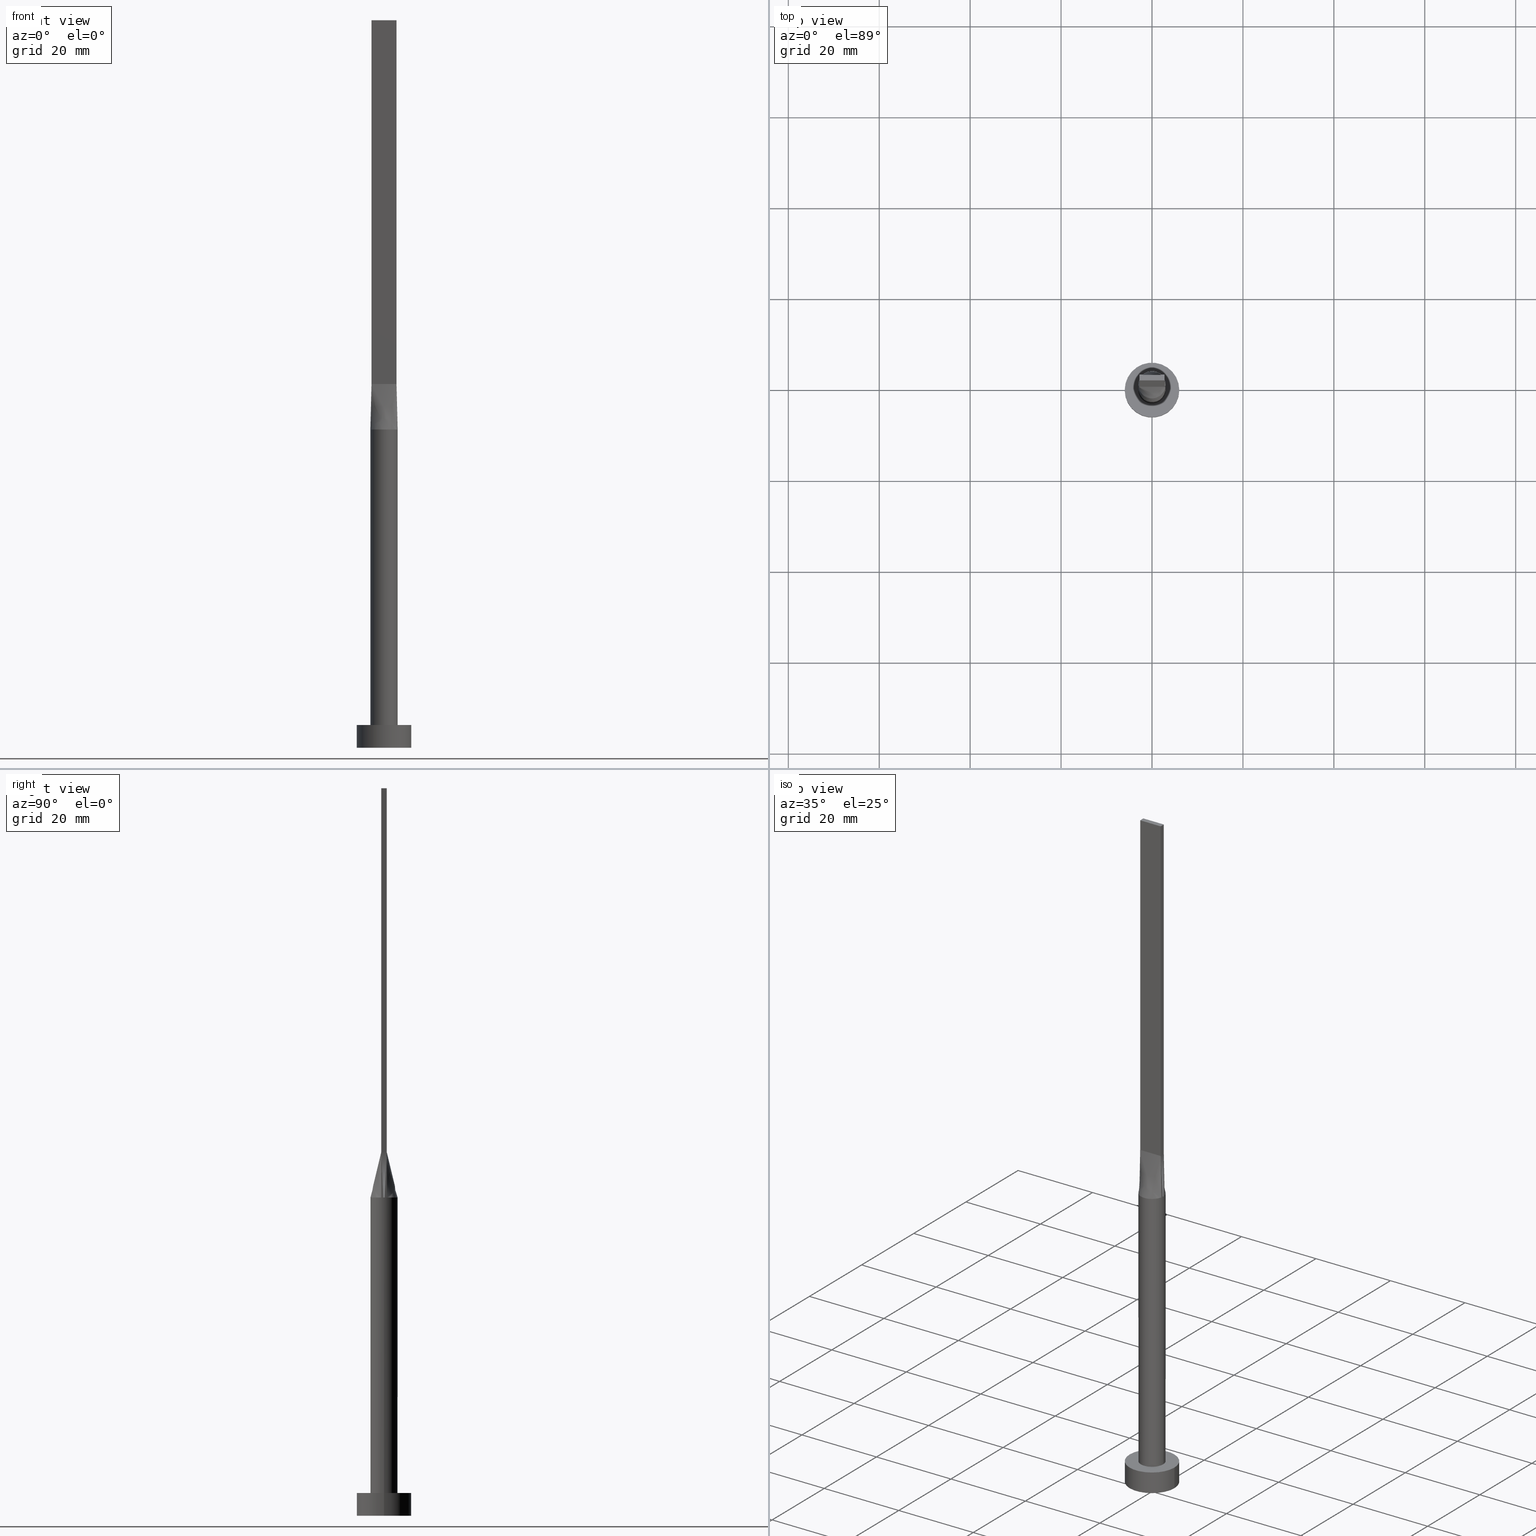
[diagram: canonical four-view strip — front | top / right | iso, engineering-drawing reading convention]
A machine part, canonical four-view strip (front | top / right | iso — engineering-drawing reading convention). The complete STEP part file that produces these views, byte-faithful:
ISO-10303-21;
HEADER;
FILE_DESCRIPTION (( 'STEP AP203' ),
    '1' );
FILE_NAME ('0a02.STEP',
    '2023-02-13T11:41:25',
    ( '' ),
    ( '' ),
    'SwSTEP 2.0',
    'SolidWorks 2019',
    '' );
FILE_SCHEMA (( 'CONFIG_CONTROL_DESIGN' ));
ENDSEC;

DATA;
#1 = CARTESIAN_POINT ( 'NONE',  ( 0.2291666666666700158, 0.6000000000000001998, 80.00000000000000000 ) ) ;
#2 = CARTESIAN_POINT ( 'NONE',  ( 2.931303352270923757, 0.6395574164693091923, 70.00000000000000000 ) ) ;
#3 = EDGE_CURVE ( 'NONE', #162, #382, #234, .T. ) ;
#4 = CARTESIAN_POINT ( 'NONE',  ( -2.976487486186430331, -0.4312336333497656105, 70.00000000000000000 ) ) ;
#5 = CARTESIAN_POINT ( 'NONE',  ( 6.000000000000000888, 7.347880794884120722E-16, 0.000000000000000000 ) ) ;
#6 = DIRECTION ( 'NONE',  ( -0.000000000000000000, -0.000000000000000000, -1.000000000000000000 ) ) ;
#7 = FACE_BOUND ( 'NONE', #147, .T. ) ;
#8 = AXIS2_PLACEMENT_3D ( 'NONE', #70, #380, #115 ) ;
#9 = CARTESIAN_POINT ( 'NONE',  ( 6.000000000000000888, 7.347880794884120722E-16, 5.000000000000000000 ) ) ;
#10 = CIRCLE ( 'NONE', #400, 6.000000000000000888 ) ;
#11 = DIRECTION ( 'NONE',  ( 1.000000000000000000, 0.000000000000000000, -0.000000000000000000 ) ) ;
#12 = CARTESIAN_POINT ( 'NONE',  ( -2.518011668798964653, 1.657305971825549840, 70.00000000000002842 ) ) ;
#13 = VERTEX_POINT ( 'NONE', #342 ) ;
#14 = CARTESIAN_POINT ( 'NONE',  ( -2.750000000000000000, -0.5999999999999994227, 80.00000000000000000 ) ) ;
#15 = EDGE_CURVE ( 'NONE', #458, #508, #505, .T. ) ;
#16 = DIRECTION ( 'NONE',  ( 0.000000000000000000, 0.000000000000000000, 1.000000000000000000 ) ) ;
#17 = EDGE_LOOP ( 'NONE', ( #416, #288, #297, #364 ) ) ;
#18 = AXIS2_PLACEMENT_3D ( 'NONE', #259, #270, #533 ) ;
#19 = CARTESIAN_POINT ( 'NONE',  ( 0.000000000000000000, 0.000000000000000000, 5.000000000000000000 ) ) ;
#20 = ORIENTED_EDGE ( 'NONE', *, *, #230, .T. ) ;
#21 = FACE_OUTER_BOUND ( 'NONE', #150, .T. ) ;
#22 = EDGE_CURVE ( 'NONE', #300, #500, #318, .T. ) ;
#23 = EDGE_LOOP ( 'NONE', ( #370, #215, #334, #119 ) ) ;
#24 = DIRECTION ( 'NONE',  ( -0.000000000000000000, -0.000000000000000000, -1.000000000000000000 ) ) ;
#25 = ORIENTED_EDGE ( 'NONE', *, *, #193, .F. ) ;
#26 = ORIENTED_EDGE ( 'NONE', *, *, #442, .T. ) ;
#27 = CIRCLE ( 'NONE', #101, 6.000000000000000888 ) ;
#28 = ADVANCED_FACE ( 'NONE', ( #393 ), #129, .F. ) ;
#29 = CC_DESIGN_SECURITY_CLASSIFICATION ( #126, ( #381 ) ) ;
#30 = ORIENTED_EDGE ( 'NONE', *, *, #22, .T. ) ;
#31 = APPROVAL_DATE_TIME ( #211, #145 ) ;
#32 = EDGE_LOOP ( 'NONE', ( #74, #212, #331, #461, #337, #25 ) ) ;
#33 = CARTESIAN_POINT ( 'NONE',  ( -0.4583333333333322046, -0.5999999999999994227, 79.99999999999998579 ) ) ;
#34 = CARTESIAN_POINT ( 'NONE',  ( 2.750000000000000000, -0.5999999999999997558, 80.00000000000000000 ) ) ;
#35 = DATE_AND_TIME ( #568, #456 ) ;
#36 = CARTESIAN_POINT ( 'NONE',  ( -1.604166666666664742, -0.5999999999999994227, 79.99999999999998579 ) ) ;
#37 = AXIS2_PLACEMENT_3D ( 'NONE', #415, #194, #220 ) ;
#38 = AXIS2_PLACEMENT_3D ( 'NONE', #43, #581, #542 ) ;
#39 = CARTESIAN_POINT ( 'NONE',  ( 2.291666666666667851, 0.6000000000000000888, 79.99999999999998579 ) ) ;
#40 = ADVANCED_FACE ( 'NONE', ( #86 ), #573, .T. ) ;
#41 = CARTESIAN_POINT ( 'NONE',  ( -0.8041209001220698260, -2.916015559847872307, 70.00000000000002842 ) ) ;
#42 = LINE ( 'NONE', #174, #90 ) ;
#43 = CARTESIAN_POINT ( 'NONE',  ( -2.750000000000000000, -0.5999999999999994227, 160.0000000000000000 ) ) ;
#44 = CARTESIAN_POINT ( 'NONE',  ( 1.604166666666669183, 0.6000000000000000888, 79.99999999999998579 ) ) ;
#45 = FACE_OUTER_BOUND ( 'NONE', #553, .T. ) ;
#46 = PRODUCT_RELATED_PRODUCT_CATEGORY ( 'detail', '', ( #414 ) ) ;
#47 = CARTESIAN_POINT ( 'NONE',  ( 1.829136458871247761, 2.402980488111650992, 69.99999999999998579 ) ) ;
#48 = DIRECTION ( 'NONE',  ( -0.01810162078030963170, -0.003949444533885608337, 0.9998283518749604415 ) ) ;
#49 = FACE_OUTER_BOUND ( 'NONE', #513, .T. ) ;
#50 = CARTESIAN_POINT ( 'NONE',  ( -6.000000000000000888, 0.000000000000000000, 5.000000000000000000 ) ) ;
#51 = CARTESIAN_POINT ( 'NONE',  ( -0.8041209001220690489, 2.916015559847871419, 70.00000000000002842 ) ) ;
#52 = EDGE_LOOP ( 'NONE', ( #567, #103, #243, #482 ) ) ;
#53 = CARTESIAN_POINT ( 'NONE',  ( -2.750000000000000000, -0.5999999999999994227, 160.0000000000000000 ) ) ;
#54 = DIRECTION ( 'NONE',  ( -0.01810162078030963170, -0.003949444533885651705, -0.9998283518749604415 ) ) ;
#55 = EDGE_CURVE ( 'NONE', #13, #201, #42, .T. ) ;
#56 = LOCAL_TIME ( 12, 41, 25.00000000000000000, #335 ) ;
#57 = CARTESIAN_POINT ( 'NONE',  ( 2.750000000000000000, -0.5999999999999997558, 160.0000000000000000 ) ) ;
#58 = CARTESIAN_POINT ( 'NONE',  ( -2.750000000000000000, 0.6000000000000001998, 80.00000000000000000 ) ) ;
#59 = DIRECTION ( 'NONE',  ( 0.000000000000000000, 0.000000000000000000, 1.000000000000000000 ) ) ;
#60 = ORIENTED_EDGE ( 'NONE', *, *, #120, .T. ) ;
#61 = DIRECTION ( 'NONE',  ( -1.000000000000000000, 0.000000000000000000, 0.000000000000000000 ) ) ;
#62 = APPROVAL ( #471, 'NEUR�EN�' ) ;
#63 = CARTESIAN_POINT ( 'NONE',  ( 2.750000000000000000, -0.5999999999999997558, 80.00000000000000000 ) ) ;
#64 =( NAMED_UNIT ( * ) PLANE_ANGLE_UNIT ( ) SI_UNIT ( $, .RADIAN. ) );
#65 = CARTESIAN_POINT ( 'NONE',  ( -2.518011668798964653, -1.657305971825550062, 70.00000000000000000 ) ) ;
#66 = ORIENTED_EDGE ( 'NONE', *, *, #408, .T. ) ;
#67 = PLANE ( 'NONE',  #83 ) ;
#68 = ORIENTED_EDGE ( 'NONE', *, *, #266, .F. ) ;
#69 = AXIS2_PLACEMENT_3D ( 'NONE', #183, #59, #333 ) ;
#70 = CARTESIAN_POINT ( 'NONE',  ( 0.000000000000000000, 0.000000000000000000, 0.000000000000000000 ) ) ;
#71 = B_SPLINE_SURFACE_WITH_KNOTS ( 'NONE', 3, 1, ( 
 ( #338, #572 ),
 ( #521, #118 ),
 ( #257, #432 ),
 ( #529, #121 ),
 ( #77, #403 ),
 ( #91, #176 ) ),
 .UNSPECIFIED., .F., .F., .F.,
 ( 4, 2, 4 ),
 ( 2, 2 ),
 ( 0.000000000000000000, 0.5000000000000000000, 1.000000000000000000 ),
 ( 0.000000000000000000, 1.000000000000000000 ),
 .UNSPECIFIED. ) ;
#72 = PRODUCT_DEFINITION ( 'NEZN�M�', '', #381, #303 ) ;
#73 = AXIS2_PLACEMENT_3D ( 'NONE', #107, #148, #511 ) ;
#74 = ORIENTED_EDGE ( 'NONE', *, *, #22, .F. ) ;
#75 = CARTESIAN_POINT ( 'NONE',  ( 0.000000000000000000, 0.000000000000000000, 0.000000000000000000 ) ) ;
#76 = ORIENTED_EDGE ( 'NONE', *, *, #408, .F. ) ;
#77 = CARTESIAN_POINT ( 'NONE',  ( 2.976487486186430331, 0.4312336333497658880, 70.00000000000000000 ) ) ;
#78 = CC_DESIGN_PERSON_AND_ORGANIZATION_ASSIGNMENT ( #326, #504, ( #72 ) ) ;
#79 = CARTESIAN_POINT ( 'NONE',  ( 2.750000000000000000, 0.6000000000000001998, 80.00000000000000000 ) ) ;
#80 = PERSON_AND_ORGANIZATION ( #258, #236 ) ;
#81 = CARTESIAN_POINT ( 'NONE',  ( 2.931047284229977734, -0.6395012256501753090, 70.00000000000000000 ) ) ;
#82 = CIRCLE ( 'NONE', #409, 3.000000000000000444 ) ;
#83 = AXIS2_PLACEMENT_3D ( 'NONE', #57, #61, #371 ) ;
#84 = CARTESIAN_POINT ( 'NONE',  ( -2.750000000000000000, -0.5999999999999995337, 80.00000000000000000 ) ) ;
#85 = DIRECTION ( 'NONE',  ( 1.000000000000000000, 0.000000000000000000, 0.000000000000000000 ) ) ;
#86 = FACE_OUTER_BOUND ( 'NONE', #17, .T. ) ;
#87 = EDGE_CURVE ( 'NONE', #164, #109, #311, .T. ) ;
#88 = DIRECTION ( 'NONE',  ( -0.01810162078030963170, 0.003949444533885597929, 0.9998283518749604415 ) ) ;
#89 = CARTESIAN_POINT ( 'NONE',  ( 1.145833333333336368, 0.6000000000000000888, 79.99999999999998579 ) ) ;
#90 = VECTOR ( 'NONE', #178, 1000.000000000000000 ) ;
#91 = CARTESIAN_POINT ( 'NONE',  ( 2.931047284229977734, 0.6395012256501758641, 70.00000000000000000 ) ) ;
#92 = CYLINDRICAL_SURFACE ( 'NONE', #155, 3.000000000000000444 ) ;
#93 = DIRECTION ( 'NONE',  ( -0.000000000000000000, -0.000000000000000000, -1.000000000000000000 ) ) ;
#94 = CARTESIAN_POINT ( 'NONE',  ( -0.4026715616377299356, 2.999999999999999556, 70.00000000000000000 ) ) ;
#95 = VERTEX_POINT ( 'NONE', #34 ) ;
#96 = DIRECTION ( 'NONE',  ( 1.000000000000000000, -5.913830031739115543E-17, 0.000000000000000000 ) ) ;
#97 = ADVANCED_FACE ( 'NONE', ( #441 ), #434, .T. ) ;
#98 = CARTESIAN_POINT ( 'NONE',  ( 0.4026715616377294915, 2.999999999999999556, 70.00000000000000000 ) ) ;
#99 = ORIENTED_EDGE ( 'NONE', *, *, #384, .F. ) ;
#100 = LINE ( 'NONE', #466, #219 ) ;
#101 = AXIS2_PLACEMENT_3D ( 'NONE', #102, #16, #457 ) ;
#102 = CARTESIAN_POINT ( 'NONE',  ( 0.000000000000000000, 0.000000000000000000, 0.000000000000000000 ) ) ;
#103 = ORIENTED_EDGE ( 'NONE', *, *, #427, .F. ) ;
#104 = CARTESIAN_POINT ( 'NONE',  ( -6.000000000000000888, 0.000000000000000000, 0.000000000000000000 ) ) ;
#105 = ORIENTED_EDGE ( 'NONE', *, *, #348, .F. ) ;
#106 = ADVANCED_FACE ( 'NONE', ( #396 ), #346, .T. ) ;
#107 = CARTESIAN_POINT ( 'NONE',  ( 0.000000000000000000, 0.000000000000000000, 0.000000000000000000 ) ) ;
#108 = CARTESIAN_POINT ( 'NONE',  ( 2.520833333333333037, -0.5999999999999996447, 79.99999999999998579 ) ) ;
#109 = VERTEX_POINT ( 'NONE', #274 ) ;
#110 = DATE_AND_TIME ( #365, #312 ) ;
#111 = CARTESIAN_POINT ( 'NONE',  ( -2.878980386154874616, -0.8781411751610622707, 70.00000000000000000 ) ) ;
#112 = VERTEX_POINT ( 'NONE', #276 ) ;
#113 = CARTESIAN_POINT ( 'NONE',  ( 0.000000000000000000, 0.000000000000000000, 70.00000000000000000 ) ) ;
#114 = ADVANCED_FACE ( 'NONE', ( #552 ), #92, .T. ) ;
#115 = DIRECTION ( 'NONE',  ( 1.000000000000000000, 0.000000000000000000, 0.000000000000000000 ) ) ;
#116 = CALENDAR_DATE ( 2023, 13, 2 ) ;
#117 = ORIENTED_EDGE ( 'NONE', *, *, #298, .F. ) ;
#118 = CARTESIAN_POINT ( 'NONE',  ( 2.750000000000000000, -0.3999999999999994671, 79.99999999999998579 ) ) ;
#119 = ORIENTED_EDGE ( 'NONE', *, *, #266, .T. ) ;
#120 = EDGE_CURVE ( 'NONE', #201, #556, #139, .T. ) ;
#121 = CARTESIAN_POINT ( 'NONE',  ( 2.750000000000000000, 0.2000000000000005385, 79.99999999999998579 ) ) ;
#122 = CARTESIAN_POINT ( 'NONE',  ( -2.750000000000000000, -0.3999999999999997446, 79.99999999999998579 ) ) ;
#123 = CARTESIAN_POINT ( 'NONE',  ( 2.750000000000000000, -0.5999999999999997558, 160.0000000000000000 ) ) ;
#124 = CARTESIAN_POINT ( 'NONE',  ( 2.518011668798964209, 1.657305971825549840, 70.00000000000000000 ) ) ;
#125 = CARTESIAN_POINT ( 'NONE',  ( 0.000000000000000000, 0.000000000000000000, 5.000000000000000000 ) ) ;
#126 = SECURITY_CLASSIFICATION ( '', '', #479 ) ;
#127 = CARTESIAN_POINT ( 'NONE',  ( -0.4026715616377299356, 2.999999999999999556, 70.00000000000000000 ) ) ;
#128 = LINE ( 'NONE', #361, #565 ) ;
#129 = PLANE ( 'NONE',  #18 ) ;
#130 = CARTESIAN_POINT ( 'NONE',  ( -2.750000000000000000, -0.5999999999999994227, 160.0000000000000000 ) ) ;
#131 = CARTESIAN_POINT ( 'NONE',  ( -0.4583333333333300397, 0.6000000000000000888, 79.99999999999998579 ) ) ;
#132 = AXIS2_PLACEMENT_3D ( 'NONE', #543, #6, #330 ) ;
#133 = CARTESIAN_POINT ( 'NONE',  ( -2.750000000000000000, -0.5999999999999994227, 160.0000000000000000 ) ) ;
#134 = AXIS2_PLACEMENT_3D ( 'NONE', #269, #497, #443 ) ;
#135 = CARTESIAN_POINT ( 'NONE',  ( -2.750000000000000000, 0.6000000000000001998, 80.00000000000000000 ) ) ;
#136 = ORIENTED_EDGE ( 'NONE', *, *, #298, .T. ) ;
#137 = FACE_OUTER_BOUND ( 'NONE', #248, .T. ) ;
#138 = EDGE_CURVE ( 'NONE', #112, #571, #580, .T. ) ;
#139 = LINE ( 'NONE', #447, #495 ) ;
#140 = ORIENTED_EDGE ( 'NONE', *, *, #138, .F. ) ;
#141 = APPROVAL_DATE_TIME ( #110, #62 ) ;
#142 = CYLINDRICAL_SURFACE ( 'NONE', #360, 6.000000000000000888 ) ;
#143 = DIRECTION ( 'NONE',  ( 0.000000000000000000, -0.000000000000000000, -1.000000000000000000 ) ) ;
#144 = DIRECTION ( 'NONE',  ( 0.000000000000000000, -1.000000000000000000, 0.000000000000000000 ) ) ;
#145 = APPROVAL ( #169, 'NEUR�EN�' ) ;
#146 = APPROVAL_PERSON_ORGANIZATION ( #455, #551, #383 ) ;
#147 = EDGE_LOOP ( 'NONE', ( #157, #140 ) ) ;
#148 = DIRECTION ( 'NONE',  ( 0.000000000000000000, 0.000000000000000000, 1.000000000000000000 ) ) ;
#149 = CARTESIAN_POINT ( 'NONE',  ( 1.517787371616672099, 2.616501225271827824, 70.00000000000002842 ) ) ;
#150 = EDGE_LOOP ( 'NONE', ( #426, #294 ) ) ;
#151 = LINE ( 'NONE', #154, #263 ) ;
#152 = CARTESIAN_POINT ( 'NONE',  ( -1.517787371616672321, -2.616501225271827380, 70.00000000000001421 ) ) ;
#153 = ORIENTED_EDGE ( 'NONE', *, *, #15, .T. ) ;
#154 = CARTESIAN_POINT ( 'NONE',  ( 2.750000000000000000, 0.6000000000000001998, 160.0000000000000000 ) ) ;
#155 = AXIS2_PLACEMENT_3D ( 'NONE', #546, #512, #404 ) ;
#156 = PLANE ( 'NONE',  #187 ) ;
#157 = ORIENTED_EDGE ( 'NONE', *, *, #491, .F. ) ;
#158 = VECTOR ( 'NONE', #494, 1000.000000000000000 ) ;
#159 = CIRCLE ( 'NONE', #134, 3.000000000000000444 ) ;
#160 = ADVANCED_FACE ( 'NONE', ( #450 ), #324, .T. ) ;
#161 = EDGE_LOOP ( 'NONE', ( #60, #368, #344, #431 ) ) ;
#162 = VERTEX_POINT ( 'NONE', #104 ) ;
#163 = VECTOR ( 'NONE', #314, 1000.000000000000000 ) ;
#164 = VERTEX_POINT ( 'NONE', #287 ) ;
#165 = EDGE_CURVE ( 'NONE', #13, #458, #387, .T. ) ;
#166 = COORDINATED_UNIVERSAL_TIME_OFFSET ( 1, 0, .AHEAD. ) ;
#167 = CARTESIAN_POINT ( 'NONE',  ( -0.9166666666666650753, -0.5999999999999994227, 79.99999999999998579 ) ) ;
#168 = CARTESIAN_POINT ( 'NONE',  ( -0.8041209001220690489, 2.916015559847871419, 70.00000000000002842 ) ) ;
#169 = APPROVAL_STATUS ( 'not_yet_approved' ) ;
#170 = CARTESIAN_POINT ( 'NONE',  ( 1.517787371616671876, -2.616501225271829156, 70.00000000000002842 ) ) ;
#171 = CARTESIAN_POINT ( 'NONE',  ( -2.931047284229977290, 0.6395012256501761971, 70.00000000000000000 ) ) ;
#172 = CARTESIAN_POINT ( 'NONE',  ( -0.4026715616377306572, -3.000000000000000000, 70.00000000000002842 ) ) ;
#173 = CLOSED_SHELL ( 'NONE', ( #160, #390, #177, #373, #272, #114, #247, #310, #97, #106, #507, #28, #459, #535, #40 ) ) ;
#174 = CARTESIAN_POINT ( 'NONE',  ( -2.840523642114988423, 0.6197506128250878099, 75.00000000000001421 ) ) ;
#175 = AXIS2_PLACEMENT_3D ( 'NONE', #125, #545, #11 ) ;
#176 = CARTESIAN_POINT ( 'NONE',  ( 2.750000000000000000, 0.6000000000000001998, 80.00000000000000000 ) ) ;
#177 = ADVANCED_FACE ( 'NONE', ( #49 ), #142, .T. ) ;
#178 = DIRECTION ( 'NONE',  ( 0.01810162078030959007, -0.003949444533885576245, 0.9998283518749604415 ) ) ;
#179 = FACE_OUTER_BOUND ( 'NONE', #52, .T. ) ;
#180 = ADVANCED_BREP_SHAPE_REPRESENTATION ( '0a02', ( #301, #73 ), #488 ) ;
#181 = CARTESIAN_POINT ( 'NONE',  ( 0.4026715616377294915, 2.999999999999999556, 70.00000000000000000 ) ) ;
#182 = DIRECTION ( 'NONE',  ( -1.000000000000000000, 0.000000000000000000, 0.000000000000000000 ) ) ;
#183 = CARTESIAN_POINT ( 'NONE',  ( 0.000000000000000000, 0.000000000000000000, 5.000000000000000000 ) ) ;
#184 = ORIENTED_EDGE ( 'NONE', *, *, #366, .T. ) ;
#185 = CC_DESIGN_PERSON_AND_ORGANIZATION_ASSIGNMENT ( #308, #256, ( #126 ) ) ;
#186 = PLANE ( 'NONE',  #175 ) ;
#187 = AXIS2_PLACEMENT_3D ( 'NONE', #75, #309, #200 ) ;
#188 = VECTOR ( 'NONE', #317, 1000.000000000000000 ) ;
#189 = LINE ( 'NONE', #506, #467 ) ;
#190 = ORIENTED_EDGE ( 'NONE', *, *, #15, .F. ) ;
#191 = COORDINATED_UNIVERSAL_TIME_OFFSET ( 1, 0, .AHEAD. ) ;
#192 = CARTESIAN_POINT ( 'NONE',  ( 2.750000000000000000, 0.6000000000000001998, 80.00000000000000000 ) ) ;
#193 = EDGE_CURVE ( 'NONE', #500, #13, #213, .T. ) ;
#194 = DIRECTION ( 'NONE',  ( 0.000000000000000000, 0.000000000000000000, 1.000000000000000000 ) ) ;
#195 = ORIENTED_EDGE ( 'NONE', *, *, #55, .F. ) ;
#196 = DIRECTION ( 'NONE',  ( -1.000000000000000000, 0.000000000000000000, 0.000000000000000000 ) ) ;
#197 = AXIS2_PLACEMENT_3D ( 'NONE', #550, #514, #143 ) ;
#198 = VERTEX_POINT ( 'NONE', #9 ) ;
#199 = CALENDAR_DATE ( 2023, 13, 2 ) ;
#200 = DIRECTION ( 'NONE',  ( 1.000000000000000000, 0.000000000000000000, -0.000000000000000000 ) ) ;
#201 = VERTEX_POINT ( 'NONE', #58 ) ;
#202 = B_SPLINE_SURFACE_WITH_KNOTS ( 'NONE', 3, 1, ( 
 ( #435, #463 ),
 ( #111, #392 ),
 ( #293, #217 ),
 ( #65, #438 ),
 ( #222, #36 ),
 ( #306, #481 ),
 ( #152, #167 ),
 ( #41, #33 ),
 ( #172, #562 ),
 ( #575, #244 ),
 ( #246, #289 ),
 ( #170, #515 ),
 ( #345, #516 ),
 ( #469, #388 ),
 ( #423, #395 ),
 ( #578, #349 ),
 ( #483, #108 ),
 ( #81, #63 ) ),
 .UNSPECIFIED., .F., .F., .F.,
 ( 4, 2, 2, 2, 2, 2, 2, 2, 4 ),
 ( 2, 2 ),
 ( 0.000000000000000000, 0.1250000000000000833, 0.2500000000000001665, 0.3750000000000001110, 0.5000000000000001110, 0.6250000000000001110, 0.7500000000000000000, 0.8750000000000000000, 1.000000000000000000 ),
 ( 0.000000000000000000, 1.000000000000000000 ),
 .UNSPECIFIED. ) ;
#203 = DIRECTION ( 'NONE',  ( 0.000000000000000000, 0.000000000000000000, 1.000000000000000000 ) ) ;
#204 = CARTESIAN_POINT ( 'NONE',  ( 2.999603793582328759, 7.166726372340513095E-16, 70.00000000000000000 ) ) ;
#205 = EDGE_LOOP ( 'NONE', ( #377, #407, #117, #190, #470, #570 ) ) ;
#206 = EDGE_CURVE ( 'NONE', #556, #508, #189, .T. ) ;
#207 = APPROVAL_ROLE ( '' ) ;
#208 = AXIS2_PLACEMENT_3D ( 'NONE', #523, #430, #541 ) ;
#209 = VERTEX_POINT ( 'NONE', #192 ) ;
#210 = LOCAL_TIME ( 12, 41, 25.00000000000000000, #216 ) ;
#211 = DATE_AND_TIME ( #116, #210 ) ;
#212 = ORIENTED_EDGE ( 'NONE', *, *, #254, .T. ) ;
#213 = B_SPLINE_CURVE_WITH_KNOTS ( 'NONE', 3,
 ( #411, #372, #502, #231, #555, #322, #149, #499, #98, #94, #51, #279, #362, #233, #12, #406, #240, #237 ),
 .UNSPECIFIED., .F., .F.,
 ( 4, 2, 2, 2, 2, 2, 2, 2, 4 ),
 ( 0.000000000000000000, 0.1250000000000000000, 0.2500000000000000000, 0.3750000000000000000, 0.5000000000000000000, 0.6250000000000000000, 0.7500000000000000000, 0.8750000000000000000, 1.000000000000000000 ),
 .UNSPECIFIED. ) ;
#214 = EDGE_CURVE ( 'NONE', #109, #209, #283, .T. ) ;
#215 = ORIENTED_EDGE ( 'NONE', *, *, #214, .F. ) ;
#216 = COORDINATED_UNIVERSAL_TIME_OFFSET ( 1, 0, .AHEAD. ) ;
#217 = CARTESIAN_POINT ( 'NONE',  ( -2.291666666666665630, -0.5999999999999994227, 79.99999999999998579 ) ) ;
#218 = CARTESIAN_POINT ( 'NONE',  ( 2.520833333333333925, 0.6000000000000000888, 79.99999999999998579 ) ) ;
#219 = VECTOR ( 'NONE', #554, 1000.000000000000000 ) ;
#220 = DIRECTION ( 'NONE',  ( 1.000000000000000000, -8.881784197001252323E-15, 0.000000000000000000 ) ) ;
#221 = CARTESIAN_POINT ( 'NONE',  ( -2.750000000000000000, 0.2000000000000000111, 79.99999999999998579 ) ) ;
#222 = CARTESIAN_POINT ( 'NONE',  ( -2.328745122427009928, -1.922758842442225058, 69.99999999999998579 ) ) ;
#223 = CARTESIAN_POINT ( 'NONE',  ( 0.8041209001220689379, 2.916015559847871863, 70.00000000000001421 ) ) ;
#224 = EDGE_CURVE ( 'NONE', #382, #162, #27, .T. ) ;
#225 = CYLINDRICAL_SURFACE ( 'NONE', #339, 6.000000000000000888 ) ;
#226 = CARTESIAN_POINT ( 'NONE',  ( -1.145833333333330817, 0.6000000000000000888, 79.99999999999998579 ) ) ;
#227 = LINE ( 'NONE', #235, #445 ) ;
#228 = CARTESIAN_POINT ( 'NONE',  ( 1.517787371616672099, 2.616501225271827824, 70.00000000000002842 ) ) ;
#229 = CARTESIAN_POINT ( 'NONE',  ( 0.000000000000000000, 0.000000000000000000, 5.000000000000000000 ) ) ;
#230 = EDGE_CURVE ( 'NONE', #238, #300, #281, .T. ) ;
#231 = CARTESIAN_POINT ( 'NONE',  ( 2.518011668798964209, 1.657305971825549840, 70.00000000000000000 ) ) ;
#232 = LINE ( 'NONE', #53, #486 ) ;
#233 = CARTESIAN_POINT ( 'NONE',  ( -2.328745122427008152, 1.922758842442225280, 69.99999999999998579 ) ) ;
#234 = CIRCLE ( 'NONE', #8, 6.000000000000000888 ) ;
#235 = CARTESIAN_POINT ( 'NONE',  ( -2.750000000000000000, 0.6000000000000001998, 160.0000000000000000 ) ) ;
#236 = ORGANIZATION ( 'NEUR�EN�', 'NEUR�EN�', '' ) ;
#237 = CARTESIAN_POINT ( 'NONE',  ( -2.931320679040856803, 0.6395611071856786012, 70.00000000000000000 ) ) ;
#238 = VERTEX_POINT ( 'NONE', #264 ) ;
#239 = DIRECTION ( 'NONE',  ( -1.000000000000000000, 0.000000000000000000, 0.000000000000000000 ) ) ;
#240 = CARTESIAN_POINT ( 'NONE',  ( -2.878980386154874616, 0.8781411751610629368, 70.00000000000001421 ) ) ;
#241 =( NAMED_UNIT ( * ) SI_UNIT ( $, .STERADIAN. ) SOLID_ANGLE_UNIT ( ) );
#242 = DIRECTION ( 'NONE',  ( 0.000000000000000000, 0.000000000000000000, 1.000000000000000000 ) ) ;
#243 = ORIENTED_EDGE ( 'NONE', *, *, #560, .F. ) ;
#244 = CARTESIAN_POINT ( 'NONE',  ( 0.2291666666666674901, -0.5999999999999995337, 79.99999999999998579 ) ) ;
#245 = CARTESIAN_POINT ( 'NONE',  ( -2.750000000000000000, 0.6000000000000001998, 160.0000000000000000 ) ) ;
#246 = CARTESIAN_POINT ( 'NONE',  ( 0.8041209001220684938, -2.916015559847872751, 70.00000000000002842 ) ) ;
#247 = ADVANCED_FACE ( 'NONE', ( #302 ), #202, .T. ) ;
#248 = EDGE_LOOP ( 'NONE', ( #525, #251 ) ) ;
#249 = APPROVAL_ROLE ( '' ) ;
#250 = EDGE_LOOP ( 'NONE', ( #522, #153, #451, #473, #195 ) ) ;
#251 = ORIENTED_EDGE ( 'NONE', *, *, #519, .T. ) ;
#252 = VECTOR ( 'NONE', #446, 1000.000000000000000 ) ;
#253 = PERSON_AND_ORGANIZATION_ROLE ( 'design_supplier' ) ;
#254 = EDGE_CURVE ( 'NONE', #300, #112, #532, .T. ) ;
#255 = ORIENTED_EDGE ( 'NONE', *, *, #449, .F. ) ;
#256 = PERSON_AND_ORGANIZATION_ROLE ( 'classification_officer' ) ;
#257 = CARTESIAN_POINT ( 'NONE',  ( 2.999207587164657074, -0.2156168166748835269, 70.00000000000000000 ) ) ;
#258 = PERSON ( 'NEUR�EN�', 'NEUR�EN�', 'NEUR�EN�', ('NEUR�EN�'), ('NEUR�EN�'), ('NEUR�EN�') ) ;
#259 = CARTESIAN_POINT ( 'NONE',  ( -2.750000000000000000, 0.6000000000000001998, 160.0000000000000000 ) ) ;
#260 = APPROVAL_DATE_TIME ( #524, #551 ) ;
#261 = DIRECTION ( 'NONE',  ( -0.000000000000000000, -0.000000000000000000, -1.000000000000000000 ) ) ;
#262 = CARTESIAN_POINT ( 'NONE',  ( -2.792624347712117761, 1.135030881087315313, 70.00000000000001421 ) ) ;
#263 = VECTOR ( 'NONE', #239, 1000.000000000000000 ) ;
#264 = CARTESIAN_POINT ( 'NONE',  ( 2.931332910560268790, -0.6395638358681950963, 70.00000000000000000 ) ) ;
#265 = CARTESIAN_POINT ( 'NONE',  ( 2.750000000000000000, -0.5999999999999997558, 160.0000000000000000 ) ) ;
#266 = EDGE_CURVE ( 'NONE', #164, #95, #485, .T. ) ;
#267 = CARTESIAN_POINT ( 'NONE',  ( -2.999603793582328315, -7.025298958605770567E-16, 70.00000000000000000 ) ) ;
#268 = CARTESIAN_POINT ( 'NONE',  ( -1.517787371616671654, 2.616501225271827380, 70.00000000000001421 ) ) ;
#269 = CARTESIAN_POINT ( 'NONE',  ( 0.000000000000000000, 0.000000000000000000, 5.000000000000000000 ) ) ;
#270 = DIRECTION ( 'NONE',  ( 1.000000000000000000, 0.000000000000000000, -0.000000000000000000 ) ) ;
#271 = CARTESIAN_POINT ( 'NONE',  ( -2.750000000000000000, 0.6000000000000001998, 160.0000000000000000 ) ) ;
#272 = ADVANCED_FACE ( 'NONE', ( #21 ), #156, .F. ) ;
#273 = CC_DESIGN_APPROVAL ( #62, ( #72 ) ) ;
#274 = CARTESIAN_POINT ( 'NONE',  ( 2.750000000000000000, 0.6000000000000001998, 160.0000000000000000 ) ) ;
#275 = LINE ( 'NONE', #358, #468 ) ;
#276 = CARTESIAN_POINT ( 'NONE',  ( 3.000000000000000444, 3.673940397442060361E-16, 5.000000000000000000 ) ) ;
#277 = EDGE_LOOP ( 'NONE', ( #184, #68, #105, #26 ) ) ;
#278 = CARTESIAN_POINT ( 'NONE',  ( 2.840523642114988867, 0.6197506128250880320, 75.00000000000001421 ) ) ;
#279 = CARTESIAN_POINT ( 'NONE',  ( -1.517787371616671654, 2.616501225271827380, 70.00000000000001421 ) ) ;
#280 = DATE_AND_TIME ( #199, #56 ) ;
#281 = CIRCLE ( 'NONE', #37, 3.000000000000000444 ) ;
#282 = CC_DESIGN_APPROVAL ( #145, ( #126 ) ) ;
#283 = LINE ( 'NONE', #367, #292 ) ;
#284 = UNCERTAINTY_MEASURE_WITH_UNIT (LENGTH_MEASURE( 1.000000000000000082E-05 ), #557, 'distance_accuracy_value', 'NONE');
#285 = CC_DESIGN_PERSON_AND_ORGANIZATION_ASSIGNMENT ( #295, #332, ( #414 ) ) ;
#286 = PLANE ( 'NONE',  #197 ) ;
#287 = CARTESIAN_POINT ( 'NONE',  ( 2.750000000000000000, -0.5999999999999997558, 160.0000000000000000 ) ) ;
#288 = ORIENTED_EDGE ( 'NONE', *, *, #472, .T. ) ;
#289 = CARTESIAN_POINT ( 'NONE',  ( 0.4583333333333343695, -0.5999999999999995337, 79.99999999999998579 ) ) ;
#290 = APPROVAL_STATUS ( 'not_yet_approved' ) ;
#291 = CC_DESIGN_DATE_AND_TIME_ASSIGNMENT ( #280, #375, ( #72 ) ) ;
#292 = VECTOR ( 'NONE', #548, 1000.000000000000000 ) ;
#293 = CARTESIAN_POINT ( 'NONE',  ( -2.792624347712116428, -1.135030881087314647, 69.99999999999998579 ) ) ;
#294 = ORIENTED_EDGE ( 'NONE', *, *, #224, .F. ) ;
#295 = PERSON_AND_ORGANIZATION ( #258, #236 ) ;
#296 = DIRECTION ( 'NONE',  ( 0.000000000000000000, 0.000000000000000000, 1.000000000000000000 ) ) ;
#297 = ORIENTED_EDGE ( 'NONE', *, *, #348, .T. ) ;
#298 = EDGE_CURVE ( 'NONE', #508, #238, #82, .T. ) ;
#299 = PERSON_AND_ORGANIZATION ( #258, #236 ) ;
#300 = VERTEX_POINT ( 'NONE', #204 ) ;
#301 = MANIFOLD_SOLID_BREP ( 'P�idat vysunut�m5', #173 ) ;
#302 = FACE_OUTER_BOUND ( 'NONE', #424, .T. ) ;
#303 = DESIGN_CONTEXT ( 'detailed design', #394, 'design' ) ;
#304 = ORIENTED_EDGE ( 'NONE', *, *, #398, .F. ) ;
#305 = PERSON_AND_ORGANIZATION ( #258, #236 ) ;
#306 = CARTESIAN_POINT ( 'NONE',  ( -1.829136458871248427, -2.402980488111649660, 69.99999999999998579 ) ) ;
#307 = CARTESIAN_POINT ( 'NONE',  ( -2.518011668798964653, 1.657305971825549840, 70.00000000000002842 ) ) ;
#308 = PERSON_AND_ORGANIZATION ( #258, #236 ) ;
#309 = DIRECTION ( 'NONE',  ( 0.000000000000000000, 0.000000000000000000, 1.000000000000000000 ) ) ;
#310 = ADVANCED_FACE ( 'NONE', ( #379 ), #71, .T. ) ;
#311 = LINE ( 'NONE', #265, #163 ) ;
#312 = LOCAL_TIME ( 12, 41, 25.00000000000000000, #191 ) ;
#313 = LINE ( 'NONE', #130, #188 ) ;
#314 = DIRECTION ( 'NONE',  ( 0.000000000000000000, 1.000000000000000000, 0.000000000000000000 ) ) ;
#315 = LINE ( 'NONE', #492, #329 ) ;
#316 = CARTESIAN_POINT ( 'NONE',  ( -2.328745122427008152, 1.922758842442225280, 69.99999999999998579 ) ) ;
#317 = DIRECTION ( 'NONE',  ( -0.000000000000000000, -0.000000000000000000, -1.000000000000000000 ) ) ;
#318 = CIRCLE ( 'NONE', #208, 3.000000000000000444 ) ;
#319 = CARTESIAN_POINT ( 'NONE',  ( -2.931047284229977734, -0.6395012256501755310, 70.00000000000000000 ) ) ;
#320 = CARTESIAN_POINT ( 'NONE',  ( 6.000000000000000888, 7.347880794884120722E-16, 5.000000000000000000 ) ) ;
#321 = VECTOR ( 'NONE', #452, 1000.000000000000000 ) ;
#322 = CARTESIAN_POINT ( 'NONE',  ( 1.829136458871247761, 2.402980488111650992, 69.99999999999998579 ) ) ;
#323 = CARTESIAN_POINT ( 'NONE',  ( -6.000000000000000888, 0.000000000000000000, 5.000000000000000000 ) ) ;
#324 = CYLINDRICAL_SURFACE ( 'NONE', #132, 3.000000000000000444 ) ;
#325 = ORIENTED_EDGE ( 'NONE', *, *, #224, .T. ) ;
#326 = PERSON_AND_ORGANIZATION ( #258, #236 ) ;
#327 = EDGE_CURVE ( 'NONE', #95, #209, #405, .T. ) ;
#328 = CARTESIAN_POINT ( 'NONE',  ( -2.931047284229977290, 0.6395012256501755310, 70.00000000000000000 ) ) ;
#329 = VECTOR ( 'NONE', #88, 1000.000000000000000 ) ;
#330 = DIRECTION ( 'NONE',  ( -1.000000000000000000, 0.000000000000000000, 0.000000000000000000 ) ) ;
#331 = ORIENTED_EDGE ( 'NONE', *, *, #138, .T. ) ;
#332 = PERSON_AND_ORGANIZATION_ROLE ( 'design_owner' ) ;
#333 = DIRECTION ( 'NONE',  ( 1.000000000000000000, 0.000000000000000000, 0.000000000000000000 ) ) ;
#334 = ORIENTED_EDGE ( 'NONE', *, *, #87, .F. ) ;
#335 = COORDINATED_UNIVERSAL_TIME_OFFSET ( 1, 0, .AHEAD. ) ;
#336 = DIRECTION ( 'NONE',  ( 0.000000000000000000, 0.000000000000000000, 1.000000000000000000 ) ) ;
#337 = ORIENTED_EDGE ( 'NONE', *, *, #165, .F. ) ;
#338 = CARTESIAN_POINT ( 'NONE',  ( 2.931047284229977290, -0.6395012256501766412, 70.00000000000000000 ) ) ;
#339 = AXIS2_PLACEMENT_3D ( 'NONE', #229, #540, #182 ) ;
#340 = ORIENTED_EDGE ( 'NONE', *, *, #384, .T. ) ;
#341 = DIRECTION ( 'NONE',  ( 1.000000000000000000, 0.000000000000000000, 0.000000000000000000 ) ) ;
#342 = CARTESIAN_POINT ( 'NONE',  ( -2.931320679040856803, 0.6395611071856786012, 70.00000000000000000 ) ) ;
#343 = AXIS2_PLACEMENT_3D ( 'NONE', #433, #399, #576 ) ;
#344 = ORIENTED_EDGE ( 'NONE', *, *, #472, .F. ) ;
#345 = CARTESIAN_POINT ( 'NONE',  ( 1.829136458871248205, -2.402980488111650992, 70.00000000000000000 ) ) ;
#346 = B_SPLINE_SURFACE_WITH_KNOTS ( 'NONE', 3, 1, ( 
 ( #579, #79 ),
 ( #493, #218 ),
 ( #350, #39 ),
 ( #124, #444 ),
 ( #389, #44 ),
 ( #47, #89 ),
 ( #228, #539 ),
 ( #223, #537 ),
 ( #181, #1 ),
 ( #127, #496 ),
 ( #168, #131 ),
 ( #268, #490 ),
 ( #347, #226 ),
 ( #316, #530 ),
 ( #307, #484 ),
 ( #262, #437 ),
 ( #453, #369 ),
 ( #328, #135 ) ),
 .UNSPECIFIED., .F., .F., .F.,
 ( 4, 2, 2, 2, 2, 2, 2, 2, 4 ),
 ( 2, 2 ),
 ( 0.000000000000000000, 0.1250000000000000000, 0.2500000000000000000, 0.3750000000000000000, 0.5000000000000000000, 0.6250000000000000000, 0.7500000000000000000, 0.8750000000000000000, 1.000000000000000000 ),
 ( 0.000000000000000000, 1.000000000000000000 ),
 .UNSPECIFIED. ) ;
#347 = CARTESIAN_POINT ( 'NONE',  ( -1.829136458871247761, 2.402980488111649660, 70.00000000000000000 ) ) ;
#348 = EDGE_CURVE ( 'NONE', #478, #164, #232, .T. ) ;
#349 = CARTESIAN_POINT ( 'NONE',  ( 2.291666666666666519, -0.5999999999999996447, 79.99999999999998579 ) ) ;
#350 = CARTESIAN_POINT ( 'NONE',  ( 2.792624347712116872, 1.135030881087315979, 70.00000000000001421 ) ) ;
#351 = DIRECTION ( 'NONE',  ( -0.000000000000000000, -0.000000000000000000, -1.000000000000000000 ) ) ;
#352 = CARTESIAN_POINT ( 'NONE',  ( -2.976487486186430331, 0.4312336333497662211, 70.00000000000000000 ) ) ;
#353 = LINE ( 'NONE', #323, #321 ) ;
#354 = CC_DESIGN_DATE_AND_TIME_ASSIGNMENT ( #35, #391, ( #126 ) ) ;
#355 = CARTESIAN_POINT ( 'NONE',  ( -2.750000000000000000, 0.4000000000000000222, 79.99999999999998579 ) ) ;
#356 = DIRECTION ( 'NONE',  ( -1.000000000000000000, -0.000000000000000000, -0.000000000000000000 ) ) ;
#357 = CARTESIAN_POINT ( 'NONE',  ( -2.999207587164656630, -0.2156168166748826387, 70.00000000000000000 ) ) ;
#358 = CARTESIAN_POINT ( 'NONE',  ( -2.750000000000000000, 0.6000000000000001998, 80.00000000000000000 ) ) ;
#359 = DIRECTION ( 'NONE',  ( -0.000000000000000000, -0.000000000000000000, -1.000000000000000000 ) ) ;
#360 = AXIS2_PLACEMENT_3D ( 'NONE', #19, #359, #196 ) ;
#361 = CARTESIAN_POINT ( 'NONE',  ( -2.750000000000000000, -0.5999999999999994227, 80.00000000000000000 ) ) ;
#362 = CARTESIAN_POINT ( 'NONE',  ( -1.829136458871247761, 2.402980488111649660, 70.00000000000000000 ) ) ;
#363 = APPLICATION_CONTEXT ( 'configuration controlled 3d designs of mechanical parts and assemblies' ) ;
#364 = ORIENTED_EDGE ( 'NONE', *, *, #87, .T. ) ;
#365 = CALENDAR_DATE ( 2023, 13, 2 ) ;
#366 = EDGE_CURVE ( 'NONE', #556, #95, #128, .T. ) ;
#367 = CARTESIAN_POINT ( 'NONE',  ( 2.750000000000000000, 0.6000000000000001998, 160.0000000000000000 ) ) ;
#368 = ORIENTED_EDGE ( 'NONE', *, *, #442, .F. ) ;
#369 = CARTESIAN_POINT ( 'NONE',  ( -2.520833333333333037, 0.6000000000000000888, 79.99999999999998579 ) ) ;
#370 = ORIENTED_EDGE ( 'NONE', *, *, #327, .T. ) ;
#371 = DIRECTION ( 'NONE',  ( 0.000000000000000000, 0.000000000000000000, 1.000000000000000000 ) ) ;
#372 = CARTESIAN_POINT ( 'NONE',  ( 2.878980386154874616, 0.8781411751610636029, 70.00000000000001421 ) ) ;
#373 = ADVANCED_FACE ( 'NONE', ( #7, #137 ), #186, .T. ) ;
#374 = ORIENTED_EDGE ( 'NONE', *, *, #3, .T. ) ;
#375 = DATE_TIME_ROLE ( 'creation_date' ) ;
#376 = CARTESIAN_POINT ( 'NONE',  ( 0.000000000000000000, 0.000000000000000000, 70.00000000000000000 ) ) ;
#377 = ORIENTED_EDGE ( 'NONE', *, *, #254, .F. ) ;
#378 = APPLICATION_PROTOCOL_DEFINITION ( 'international standard', 'config_control_design', 1994, #363 ) ;
#379 = FACE_OUTER_BOUND ( 'NONE', #475, .T. ) ;
#380 = DIRECTION ( 'NONE',  ( 0.000000000000000000, 0.000000000000000000, 1.000000000000000000 ) ) ;
#381 = PRODUCT_DEFINITION_FORMATION_WITH_SPECIFIED_SOURCE ( 'LIBOVOLN�', '', #414, .NOT_KNOWN. ) ;
#382 = VERTEX_POINT ( 'NONE', #5 ) ;
#383 = APPROVAL_ROLE ( '' ) ;
#384 = EDGE_CURVE ( 'NONE', #500, #209, #410, .T. ) ;
#385 = ORIENTED_EDGE ( 'NONE', *, *, #480, .T. ) ;
#386 = ORIENTED_EDGE ( 'NONE', *, *, #55, .T. ) ;
#387 = CIRCLE ( 'NONE', #464, 3.000000000000000444 ) ;
#388 = CARTESIAN_POINT ( 'NONE',  ( 1.604166666666666963, -0.5999999999999996447, 79.99999999999998579 ) ) ;
#389 = CARTESIAN_POINT ( 'NONE',  ( 2.328745122427009040, 1.922758842442225946, 69.99999999999998579 ) ) ;
#390 = ADVANCED_FACE ( 'NONE', ( #45 ), #225, .T. ) ;
#391 = DATE_TIME_ROLE ( 'classification_date' ) ;
#392 = CARTESIAN_POINT ( 'NONE',  ( -2.520833333333333037, -0.5999999999999994227, 79.99999999999998579 ) ) ;
#393 = FACE_OUTER_BOUND ( 'NONE', #161, .T. ) ;
#394 = APPLICATION_CONTEXT ( 'configuration controlled 3d designs of mechanical parts and assemblies' ) ;
#395 = CARTESIAN_POINT ( 'NONE',  ( 1.833333333333333481, -0.5999999999999996447, 79.99999999999998579 ) ) ;
#396 = FACE_OUTER_BOUND ( 'NONE', #544, .T. ) ;
#397 = FACE_OUTER_BOUND ( 'NONE', #277, .T. ) ;
#398 = EDGE_CURVE ( 'NONE', #209, #201, #275, .T. ) ;
#399 = DIRECTION ( 'NONE',  ( 0.000000000000000000, 0.000000000000000000, 1.000000000000000000 ) ) ;
#400 = AXIS2_PLACEMENT_3D ( 'NONE', #489, #448, #85 ) ;
#401 = LINE ( 'NONE', #320, #510 ) ;
#402 = CARTESIAN_POINT ( 'NONE',  ( -2.750000000000000000, 0.6000000000000001998, 80.00000000000000000 ) ) ;
#403 = CARTESIAN_POINT ( 'NONE',  ( 2.750000000000000000, 0.4000000000000004108, 79.99999999999998579 ) ) ;
#404 = DIRECTION ( 'NONE',  ( -1.000000000000000000, 0.000000000000000000, 0.000000000000000000 ) ) ;
#405 = LINE ( 'NONE', #501, #158 ) ;
#406 = CARTESIAN_POINT ( 'NONE',  ( -2.792624347712117761, 1.135030881087315313, 70.00000000000001421 ) ) ;
#407 = ORIENTED_EDGE ( 'NONE', *, *, #230, .F. ) ;
#408 = EDGE_CURVE ( 'NONE', #503, #162, #353, .T. ) ;
#409 = AXIS2_PLACEMENT_3D ( 'NONE', #376, #336, #558 ) ;
#410 = LINE ( 'NONE', #278, #509 ) ;
#411 = CARTESIAN_POINT ( 'NONE',  ( 2.931303352270923757, 0.6395574164693091923, 70.00000000000000000 ) ) ;
#412 = ORIENTED_EDGE ( 'NONE', *, *, #498, .F. ) ;
#413 = MECHANICAL_CONTEXT ( 'NONE', #363, 'mechanical' ) ;
#414 = PRODUCT ( '0a02', '0a02', '', ( #413 ) ) ;
#415 = CARTESIAN_POINT ( 'NONE',  ( 0.000000000000000000, 0.000000000000000000, 70.00000000000000000 ) ) ;
#416 = ORIENTED_EDGE ( 'NONE', *, *, #560, .T. ) ;
#417 = CARTESIAN_POINT ( 'NONE',  ( -3.000000000000000444, 0.000000000000000000, 5.000000000000000000 ) ) ;
#418 = DIRECTION ( 'NONE',  ( 1.000000000000000000, 0.000000000000000000, 0.000000000000000000 ) ) ;
#419 = ORIENTED_EDGE ( 'NONE', *, *, #193, .T. ) ;
#420 = APPLICATION_PROTOCOL_DEFINITION ( 'international standard', 'config_control_design', 1994, #394 ) ;
#421 = CARTESIAN_POINT ( 'NONE',  ( 3.000000000000000444, 3.673940397442060361E-16, 70.00000000000000000 ) ) ;
#422 = ORIENTED_EDGE ( 'NONE', *, *, #206, .T. ) ;
#423 = CARTESIAN_POINT ( 'NONE',  ( 2.518011668798964209, -1.657305971825550506, 70.00000000000001421 ) ) ;
#424 = EDGE_LOOP ( 'NONE', ( #136, #385, #517, #422 ) ) ;
#425 = DIRECTION ( 'NONE',  ( 1.000000000000000000, 0.000000000000000000, 0.000000000000000000 ) ) ;
#426 = ORIENTED_EDGE ( 'NONE', *, *, #3, .F. ) ;
#427 = EDGE_CURVE ( 'NONE', #549, #201, #227, .T. ) ;
#428 = COORDINATED_UNIVERSAL_TIME_OFFSET ( 1, 0, .AHEAD. ) ;
#429 = VECTOR ( 'NONE', #261, 1000.000000000000000 ) ;
#430 = DIRECTION ( 'NONE',  ( 0.000000000000000000, 0.000000000000000000, 1.000000000000000000 ) ) ;
#431 = ORIENTED_EDGE ( 'NONE', *, *, #427, .T. ) ;
#432 = CARTESIAN_POINT ( 'NONE',  ( 2.750000000000000000, -0.1999999999999993727, 79.99999999999998579 ) ) ;
#433 = CARTESIAN_POINT ( 'NONE',  ( 0.000000000000000000, 0.000000000000000000, 160.0000000000000000 ) ) ;
#434 = B_SPLINE_SURFACE_WITH_KNOTS ( 'NONE', 3, 1, ( 
 ( #171, #402 ),
 ( #352, #355 ),
 ( #439, #221 ),
 ( #357, #487 ),
 ( #4, #122 ),
 ( #319, #84 ) ),
 .UNSPECIFIED., .F., .F., .F.,
 ( 4, 2, 4 ),
 ( 2, 2 ),
 ( 0.000000000000000000, 0.5000000000000000000, 1.000000000000000000 ),
 ( 0.000000000000000000, 1.000000000000000000 ),
 .UNSPECIFIED. ) ;
#435 = CARTESIAN_POINT ( 'NONE',  ( -2.931047284229977734, -0.6395012256501755310, 70.00000000000000000 ) ) ;
#436 = VECTOR ( 'NONE', #24, 1000.000000000000000 ) ;
#437 = CARTESIAN_POINT ( 'NONE',  ( -2.291666666666665630, 0.6000000000000000888, 79.99999999999998579 ) ) ;
#438 = CARTESIAN_POINT ( 'NONE',  ( -1.833333333333331705, -0.5999999999999994227, 79.99999999999998579 ) ) ;
#439 = CARTESIAN_POINT ( 'NONE',  ( -2.999207587164656630, 0.2156168166748832771, 70.00000000000000000 ) ) ;
#440 = PLANE ( 'NONE',  #38 ) ;
#441 = FACE_OUTER_BOUND ( 'NONE', #250, .T. ) ;
#442 = EDGE_CURVE ( 'NONE', #478, #556, #313, .T. ) ;
#443 = DIRECTION ( 'NONE',  ( 1.000000000000000000, 0.000000000000000000, 0.000000000000000000 ) ) ;
#444 = CARTESIAN_POINT ( 'NONE',  ( 1.833333333333335258, 0.6000000000000000888, 79.99999999999998579 ) ) ;
#445 = VECTOR ( 'NONE', #351, 1000.000000000000000 ) ;
#446 = DIRECTION ( 'NONE',  ( 0.000000000000000000, -1.000000000000000000, 0.000000000000000000 ) ) ;
#447 = CARTESIAN_POINT ( 'NONE',  ( -2.750000000000000000, 0.6000000000000001998, 80.00000000000000000 ) ) ;
#448 = DIRECTION ( 'NONE',  ( 0.000000000000000000, 0.000000000000000000, 1.000000000000000000 ) ) ;
#449 = EDGE_CURVE ( 'NONE', #503, #198, #10, .T. ) ;
#450 = FACE_OUTER_BOUND ( 'NONE', #32, .T. ) ;
#451 = ORIENTED_EDGE ( 'NONE', *, *, #206, .F. ) ;
#452 = DIRECTION ( 'NONE',  ( -0.000000000000000000, -0.000000000000000000, -1.000000000000000000 ) ) ;
#453 = CARTESIAN_POINT ( 'NONE',  ( -2.878980386154874616, 0.8781411751610629368, 70.00000000000001421 ) ) ;
#454 = APPROVAL_PERSON_ORGANIZATION ( #299, #145, #207 ) ;
#455 = PERSON_AND_ORGANIZATION ( #258, #236 ) ;
#456 = LOCAL_TIME ( 12, 41, 25.00000000000000000, #428 ) ;
#457 = DIRECTION ( 'NONE',  ( 1.000000000000000000, 0.000000000000000000, 0.000000000000000000 ) ) ;
#458 = VERTEX_POINT ( 'NONE', #267 ) ;
#459 = ADVANCED_FACE ( 'NONE', ( #397 ), #440, .F. ) ;
#460 = CARTESIAN_POINT ( 'NONE',  ( 0.000000000000000000, 0.000000000000000000, 70.00000000000000000 ) ) ;
#461 = ORIENTED_EDGE ( 'NONE', *, *, #526, .F. ) ;
#462 = PERSON_AND_ORGANIZATION ( #258, #236 ) ;
#463 = CARTESIAN_POINT ( 'NONE',  ( -2.750000000000000000, -0.5999999999999994227, 80.00000000000000000 ) ) ;
#464 = AXIS2_PLACEMENT_3D ( 'NONE', #460, #242, #418 ) ;
#465 = ORIENTED_EDGE ( 'NONE', *, *, #519, .F. ) ;
#466 = CARTESIAN_POINT ( 'NONE',  ( -3.000000000000000444, 0.000000000000000000, 70.00000000000000000 ) ) ;
#467 = VECTOR ( 'NONE', #54, 1000.000000000000000 ) ;
#468 = VECTOR ( 'NONE', #356, 1000.000000000000000 ) ;
#469 = CARTESIAN_POINT ( 'NONE',  ( 2.328745122427008152, -1.922758842442226390, 70.00000000000000000 ) ) ;
#470 = ORIENTED_EDGE ( 'NONE', *, *, #526, .T. ) ;
#471 = APPROVAL_STATUS ( 'not_yet_approved' ) ;
#472 = EDGE_CURVE ( 'NONE', #549, #478, #538, .T. ) ;
#473 = ORIENTED_EDGE ( 'NONE', *, *, #120, .F. ) ;
#474 = SHAPE_DEFINITION_REPRESENTATION ( #476, #180 ) ;
#475 = EDGE_LOOP ( 'NONE', ( #20, #30, #340, #528, #559 ) ) ;
#476 = PRODUCT_DEFINITION_SHAPE ( 'NONE', 'NONE',  #72 ) ;
#477 = LOCAL_TIME ( 12, 41, 25.00000000000000000, #166 ) ;
#478 = VERTEX_POINT ( 'NONE', #133 ) ;
#479 = SECURITY_CLASSIFICATION_LEVEL ( 'unclassified' ) ;
#480 = EDGE_CURVE ( 'NONE', #238, #95, #315, .T. ) ;
#481 = CARTESIAN_POINT ( 'NONE',  ( -1.145833333333331705, -0.5999999999999994227, 79.99999999999998579 ) ) ;
#482 = ORIENTED_EDGE ( 'NONE', *, *, #214, .T. ) ;
#483 = CARTESIAN_POINT ( 'NONE',  ( 2.878980386154875060, -0.8781411751610634919, 70.00000000000000000 ) ) ;
#484 = CARTESIAN_POINT ( 'NONE',  ( -1.833333333333331705, 0.6000000000000000888, 79.99999999999998579 ) ) ;
#485 = LINE ( 'NONE', #123, #429 ) ;
#486 = VECTOR ( 'NONE', #96, 1000.000000000000000 ) ;
#487 = CARTESIAN_POINT ( 'NONE',  ( -2.750000000000000000, -0.1999999999999998723, 79.99999999999998579 ) ) ;
#488 =( GEOMETRIC_REPRESENTATION_CONTEXT ( 3 ) GLOBAL_UNCERTAINTY_ASSIGNED_CONTEXT ( ( #284 ) ) GLOBAL_UNIT_ASSIGNED_CONTEXT ( ( #557, #64, #241 ) ) REPRESENTATION_CONTEXT ( 'NONE', 'WORKASPACE' ) );
#489 = CARTESIAN_POINT ( 'NONE',  ( 0.000000000000000000, 0.000000000000000000, 5.000000000000000000 ) ) ;
#490 = CARTESIAN_POINT ( 'NONE',  ( -0.9166666666666637431, 0.6000000000000000888, 79.99999999999998579 ) ) ;
#491 = EDGE_CURVE ( 'NONE', #571, #112, #159, .T. ) ;
#492 = CARTESIAN_POINT ( 'NONE',  ( 2.840523642114988867, -0.6197506128250874768, 75.00000000000001421 ) ) ;
#493 = CARTESIAN_POINT ( 'NONE',  ( 2.878980386154874616, 0.8781411751610636029, 70.00000000000001421 ) ) ;
#494 = DIRECTION ( 'NONE',  ( -0.000000000000000000, 1.000000000000000000, -0.000000000000000000 ) ) ;
#495 = VECTOR ( 'NONE', #144, 1000.000000000000000 ) ;
#496 = CARTESIAN_POINT ( 'NONE',  ( -0.2291666666666632990, 0.6000000000000000888, 79.99999999999998579 ) ) ;
#497 = DIRECTION ( 'NONE',  ( 0.000000000000000000, 0.000000000000000000, 1.000000000000000000 ) ) ;
#498 = EDGE_CURVE ( 'NONE', #198, #382, #401, .T. ) ;
#499 = CARTESIAN_POINT ( 'NONE',  ( 0.8041209001220689379, 2.916015559847871863, 70.00000000000001421 ) ) ;
#500 = VERTEX_POINT ( 'NONE', #2 ) ;
#501 = CARTESIAN_POINT ( 'NONE',  ( 2.750000000000000000, 0.6000000000000001998, 80.00000000000000000 ) ) ;
#502 = CARTESIAN_POINT ( 'NONE',  ( 2.792624347712116872, 1.135030881087315979, 70.00000000000001421 ) ) ;
#503 = VERTEX_POINT ( 'NONE', #50 ) ;
#504 = PERSON_AND_ORGANIZATION_ROLE ( 'creator' ) ;
#505 = CIRCLE ( 'NONE', #563, 3.000000000000000444 ) ;
#506 = CARTESIAN_POINT ( 'NONE',  ( -2.840523642114988867, -0.6197506128250873658, 75.00000000000001421 ) ) ;
#507 = ADVANCED_FACE ( 'NONE', ( #179 ), #286, .F. ) ;
#508 = VERTEX_POINT ( 'NONE', #518 ) ;
#509 = VECTOR ( 'NONE', #48, 1000.000000000000000 ) ;
#510 = VECTOR ( 'NONE', #93, 1000.000000000000000 ) ;
#511 = DIRECTION ( 'NONE',  ( 1.000000000000000000, 0.000000000000000000, 0.000000000000000000 ) ) ;
#512 = DIRECTION ( 'NONE',  ( -0.000000000000000000, -0.000000000000000000, -1.000000000000000000 ) ) ;
#513 = EDGE_LOOP ( 'NONE', ( #412, #255, #66, #374 ) ) ;
#514 = DIRECTION ( 'NONE',  ( 0.000000000000000000, -1.000000000000000000, 0.000000000000000000 ) ) ;
#515 = CARTESIAN_POINT ( 'NONE',  ( 0.9166666666666676289, -0.5999999999999996447, 79.99999999999998579 ) ) ;
#516 = CARTESIAN_POINT ( 'NONE',  ( 1.145833333333333925, -0.5999999999999996447, 79.99999999999998579 ) ) ;
#517 = ORIENTED_EDGE ( 'NONE', *, *, #366, .F. ) ;
#518 = CARTESIAN_POINT ( 'NONE',  ( -2.931315536094174057, -0.6395601373676296220, 70.00000000000000000 ) ) ;
#519 = EDGE_CURVE ( 'NONE', #198, #503, #520, .T. ) ;
#520 = CIRCLE ( 'NONE', #527, 6.000000000000000888 ) ;
#521 = CARTESIAN_POINT ( 'NONE',  ( 2.976487486186430331, -0.4312336333497666652, 70.00000000000000000 ) ) ;
#522 = ORIENTED_EDGE ( 'NONE', *, *, #165, .T. ) ;
#523 = CARTESIAN_POINT ( 'NONE',  ( 0.000000000000000000, 0.000000000000000000, 70.00000000000000000 ) ) ;
#524 = DATE_AND_TIME ( #574, #477 ) ;
#525 = ORIENTED_EDGE ( 'NONE', *, *, #449, .T. ) ;
#526 = EDGE_CURVE ( 'NONE', #458, #571, #100, .T. ) ;
#527 = AXIS2_PLACEMENT_3D ( 'NONE', #547, #203, #425 ) ;
#528 = ORIENTED_EDGE ( 'NONE', *, *, #327, .F. ) ;
#529 = CARTESIAN_POINT ( 'NONE',  ( 2.999207587164657074, 0.2156168166748827775, 70.00000000000000000 ) ) ;
#530 = CARTESIAN_POINT ( 'NONE',  ( -1.604166666666664520, 0.6000000000000000888, 79.99999999999998579 ) ) ;
#531 = PERSON_AND_ORGANIZATION_ROLE ( 'creator' ) ;
#532 = LINE ( 'NONE', #421, #436 ) ;
#533 = DIRECTION ( 'NONE',  ( -0.000000000000000000, 0.000000000000000000, -1.000000000000000000 ) ) ;
#534 = DIRECTION ( 'NONE',  ( 1.000000000000000000, -5.913830031739115543E-17, 0.000000000000000000 ) ) ;
#535 = ADVANCED_FACE ( 'NONE', ( #561 ), #67, .F. ) ;
#536 = CC_DESIGN_APPROVAL ( #551, ( #381 ) ) ;
#537 = CARTESIAN_POINT ( 'NONE',  ( 0.4583333333333366455, 0.6000000000000000888, 79.99999999999998579 ) ) ;
#538 = LINE ( 'NONE', #271, #252 ) ;
#539 = CARTESIAN_POINT ( 'NONE',  ( 0.9166666666666698493, 0.6000000000000000888, 79.99999999999998579 ) ) ;
#540 = DIRECTION ( 'NONE',  ( -0.000000000000000000, -0.000000000000000000, -1.000000000000000000 ) ) ;
#541 = DIRECTION ( 'NONE',  ( 1.000000000000000000, 0.000000000000000000, 0.000000000000000000 ) ) ;
#542 = DIRECTION ( 'NONE',  ( -1.000000000000000000, 5.913830031739115543E-17, 0.000000000000000000 ) ) ;
#543 = CARTESIAN_POINT ( 'NONE',  ( 0.000000000000000000, 0.000000000000000000, 70.00000000000000000 ) ) ;
#544 = EDGE_LOOP ( 'NONE', ( #419, #386, #304, #99 ) ) ;
#545 = DIRECTION ( 'NONE',  ( 0.000000000000000000, 0.000000000000000000, 1.000000000000000000 ) ) ;
#546 = CARTESIAN_POINT ( 'NONE',  ( 0.000000000000000000, 0.000000000000000000, 70.00000000000000000 ) ) ;
#547 = CARTESIAN_POINT ( 'NONE',  ( 0.000000000000000000, 0.000000000000000000, 5.000000000000000000 ) ) ;
#548 = DIRECTION ( 'NONE',  ( -0.000000000000000000, -0.000000000000000000, -1.000000000000000000 ) ) ;
#549 = VERTEX_POINT ( 'NONE', #245 ) ;
#550 = CARTESIAN_POINT ( 'NONE',  ( 2.750000000000000000, 0.6000000000000001998, 160.0000000000000000 ) ) ;
#551 = APPROVAL ( #290, 'NEUR�EN�' ) ;
#552 = FACE_OUTER_BOUND ( 'NONE', #205, .T. ) ;
#553 = EDGE_LOOP ( 'NONE', ( #465, #564, #325, #76 ) ) ;
#554 = DIRECTION ( 'NONE',  ( -0.000000000000000000, -0.000000000000000000, -1.000000000000000000 ) ) ;
#555 = CARTESIAN_POINT ( 'NONE',  ( 2.328745122427009040, 1.922758842442225946, 69.99999999999998579 ) ) ;
#556 = VERTEX_POINT ( 'NONE', #14 ) ;
#557 =( LENGTH_UNIT ( ) NAMED_UNIT ( * ) SI_UNIT ( .MILLI., .METRE. ) );
#558 = DIRECTION ( 'NONE',  ( 1.000000000000000000, 0.000000000000000000, 0.000000000000000000 ) ) ;
#559 = ORIENTED_EDGE ( 'NONE', *, *, #480, .F. ) ;
#560 = EDGE_CURVE ( 'NONE', #109, #549, #151, .T. ) ;
#561 = FACE_OUTER_BOUND ( 'NONE', #23, .T. ) ;
#562 = CARTESIAN_POINT ( 'NONE',  ( -0.2291666666666657692, -0.5999999999999995337, 79.99999999999998579 ) ) ;
#563 = AXIS2_PLACEMENT_3D ( 'NONE', #113, #296, #341 ) ;
#564 = ORIENTED_EDGE ( 'NONE', *, *, #498, .T. ) ;
#565 = VECTOR ( 'NONE', #534, 1000.000000000000000 ) ;
#566 = APPROVAL_PERSON_ORGANIZATION ( #462, #62, #249 ) ;
#567 = ORIENTED_EDGE ( 'NONE', *, *, #398, .T. ) ;
#568 = CALENDAR_DATE ( 2023, 13, 2 ) ;
#569 = CC_DESIGN_PERSON_AND_ORGANIZATION_ASSIGNMENT ( #80, #531, ( #381 ) ) ;
#570 = ORIENTED_EDGE ( 'NONE', *, *, #491, .T. ) ;
#571 = VERTEX_POINT ( 'NONE', #417 ) ;
#572 = CARTESIAN_POINT ( 'NONE',  ( 2.750000000000000000, -0.5999999999999997558, 80.00000000000000000 ) ) ;
#573 = PLANE ( 'NONE',  #343 ) ;
#574 = CALENDAR_DATE ( 2023, 13, 2 ) ;
#575 = CARTESIAN_POINT ( 'NONE',  ( 0.4026715616377293805, -3.000000000000001332, 70.00000000000002842 ) ) ;
#576 = DIRECTION ( 'NONE',  ( 1.000000000000000000, 0.000000000000000000, -0.000000000000000000 ) ) ;
#577 = CC_DESIGN_PERSON_AND_ORGANIZATION_ASSIGNMENT ( #305, #253, ( #381 ) ) ;
#578 = CARTESIAN_POINT ( 'NONE',  ( 2.792624347712116872, -1.135030881087315757, 70.00000000000001421 ) ) ;
#579 = CARTESIAN_POINT ( 'NONE',  ( 2.931047284229977290, 0.6395012256501767522, 70.00000000000000000 ) ) ;
#580 = CIRCLE ( 'NONE', #69, 3.000000000000000444 ) ;
#581 = DIRECTION ( 'NONE',  ( 5.913830031739115543E-17, 1.000000000000000000, -0.000000000000000000 ) ) ;
ENDSEC;
END-ISO-10303-21;
